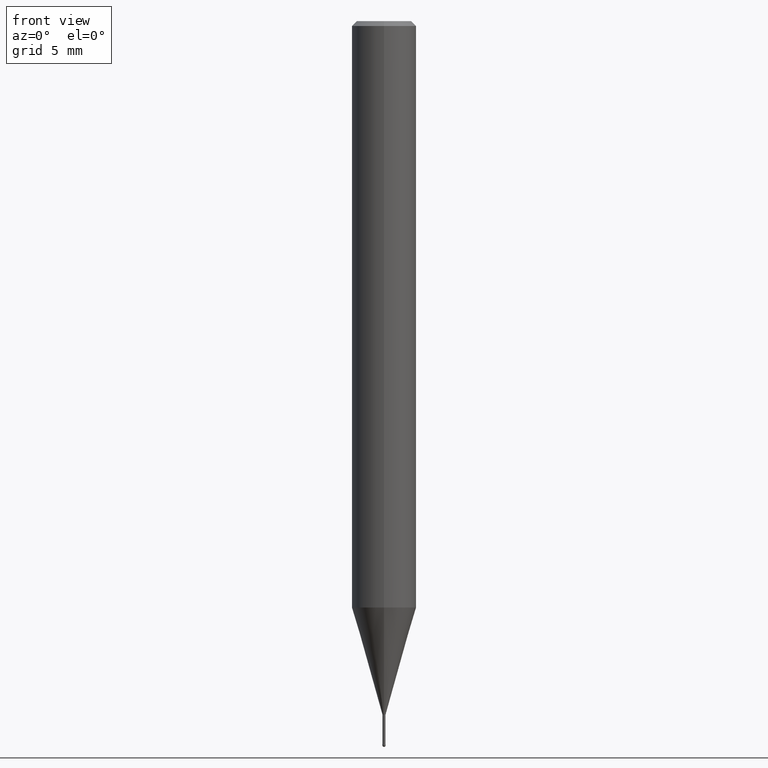
[diagram: clean part render]
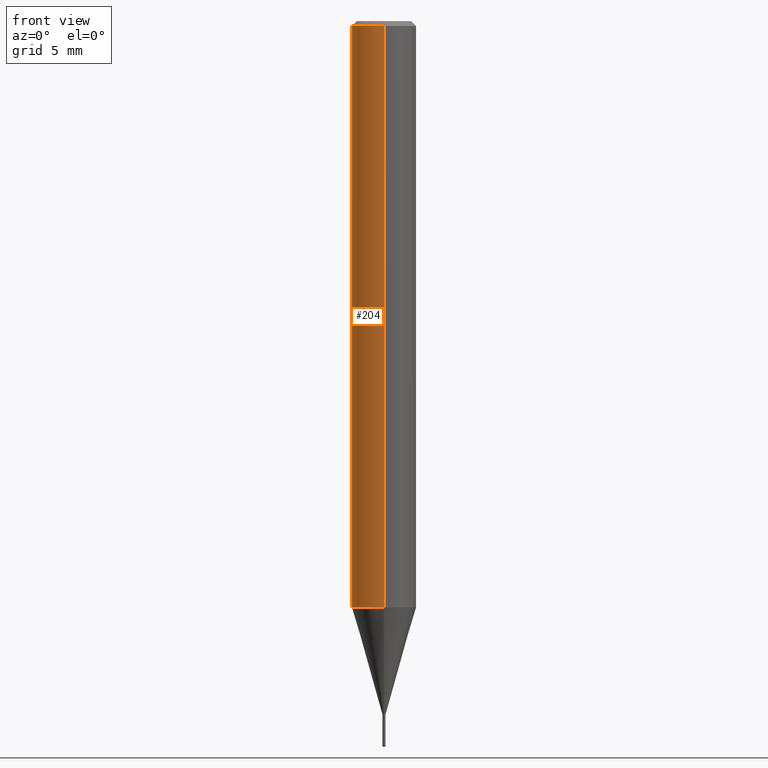
[diagram: same view with one face highlighted and labeled with its STEP entity id]
A machine part, front view. The second image highlights one B-rep face of the part: STEP entity #204.
In plain terms, the highlighted cylindrical surface (edge-blend (fillet) strip) has radius 2 mm, axis along (-0, -0, 1).
Its self-contained STEP definition (entity closure, byte-faithful):
#100=EDGE_CURVE('',#192,#112,#242,.T.);
#112=VERTEX_POINT('',#255);
#136=VERTEX_POINT('',#286);
#184=EDGE_CURVE('',#136,#200,#337,.T.);
#192=VERTEX_POINT('',#347);
#196=EDGE_CURVE('',#136,#112,#352,.T.);
#200=VERTEX_POINT('',#356);
#204=ADVANCED_FACE('',(#360),#361,.T.);
#206=EDGE_CURVE('',#200,#192,#363,.T.);
#242=LINE('',#394,#395);
#255=CARTESIAN_POINT('',(0.0,2.0,-36.356));
#286=CARTESIAN_POINT('',(2.44921270764475E-016,-2.0,-36.356));
#337=LINE('',#515,#516);
#347=CARTESIAN_POINT('',(0.0,2.0,-0.299999999999997));
#352=CIRCLE('',#532,2.0);
#356=CARTESIAN_POINT('',(2.44921270764475E-016,-2.0,-0.299999999999997));
#360=FACE_OUTER_BOUND('',#541,.T.);
#361=CYLINDRICAL_SURFACE('',#542,2.0);
#363=CIRCLE('',#545,2.0);
#394=CARTESIAN_POINT('',(-2.44921270764475E-016,2.0,-18.328));
#395=VECTOR('',#568,1.0);
#515=CARTESIAN_POINT('',(2.44921270764475E-016,-2.0,-18.328));
#516=VECTOR('',#688,1.0);
#532=AXIS2_PLACEMENT_3D('',#713,#714,#715);
#541=EDGE_LOOP('',(#720,#721,#722,#723));
#542=AXIS2_PLACEMENT_3D('',#724,#725,#726);
#545=AXIS2_PLACEMENT_3D('',#727,#728,#729);
#568=DIRECTION('',(0.0,0.0,-1.0));
#688=DIRECTION('',(-0.0,-0.0,1.0));
#713=CARTESIAN_POINT('',(0.0,0.0,-36.356));
#714=DIRECTION('',(0.0,0.0,-1.0));
#715=DIRECTION('',(0.0,1.0,0.0));
#720=ORIENTED_EDGE('',*,*,#100,.T.);
#721=ORIENTED_EDGE('',*,*,#196,.F.);
#722=ORIENTED_EDGE('',*,*,#184,.T.);
#723=ORIENTED_EDGE('',*,*,#206,.T.);
#724=CARTESIAN_POINT('',(0.0,0.0,-18.328));
#725=DIRECTION('',(-0.0,-0.0,1.0));
#726=DIRECTION('',(0.0,1.0,0.0));
#727=CARTESIAN_POINT('',(0.0,0.0,-0.299999999999997));
#728=DIRECTION('',(0.0,0.0,-1.0));
#729=DIRECTION('',(0.0,1.0,0.0));